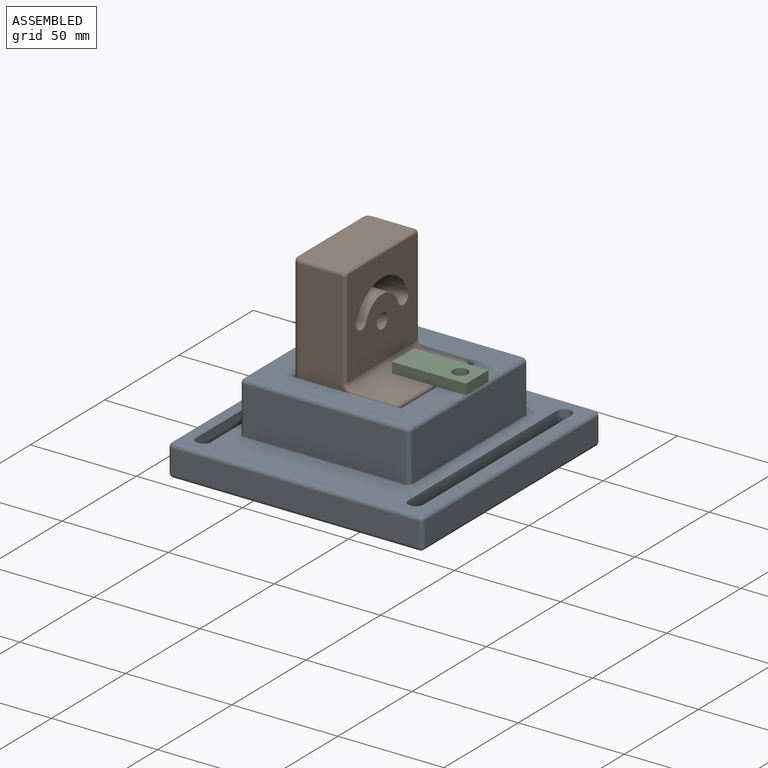
[diagram: assembled view]
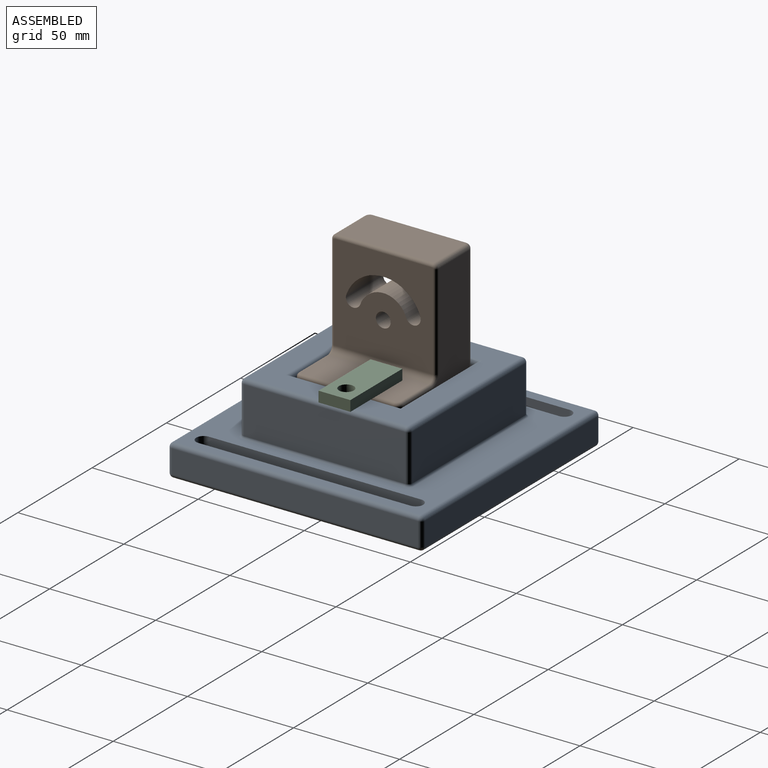
[diagram: assembled view, second angle]
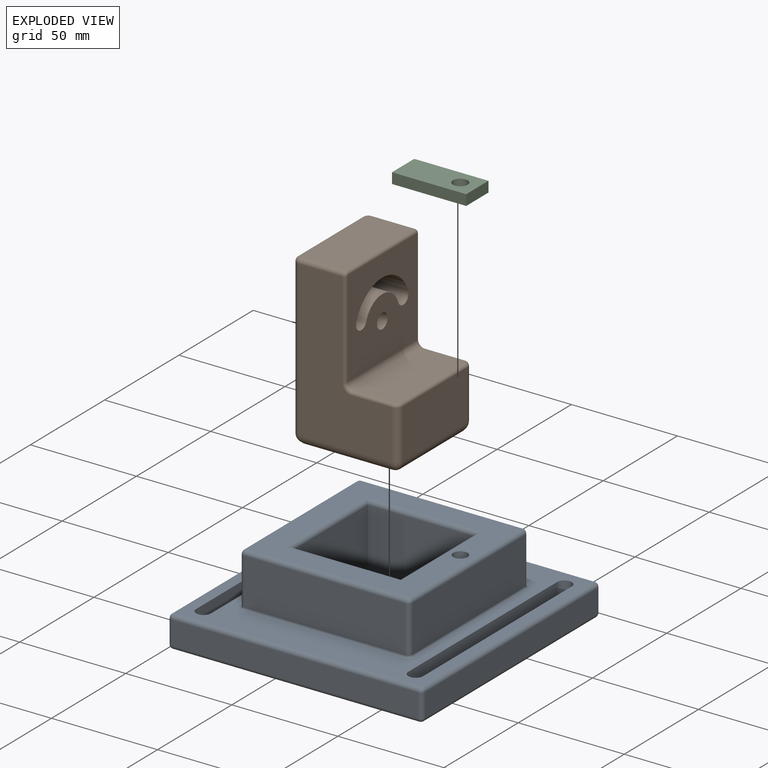
[diagram: exploded view]
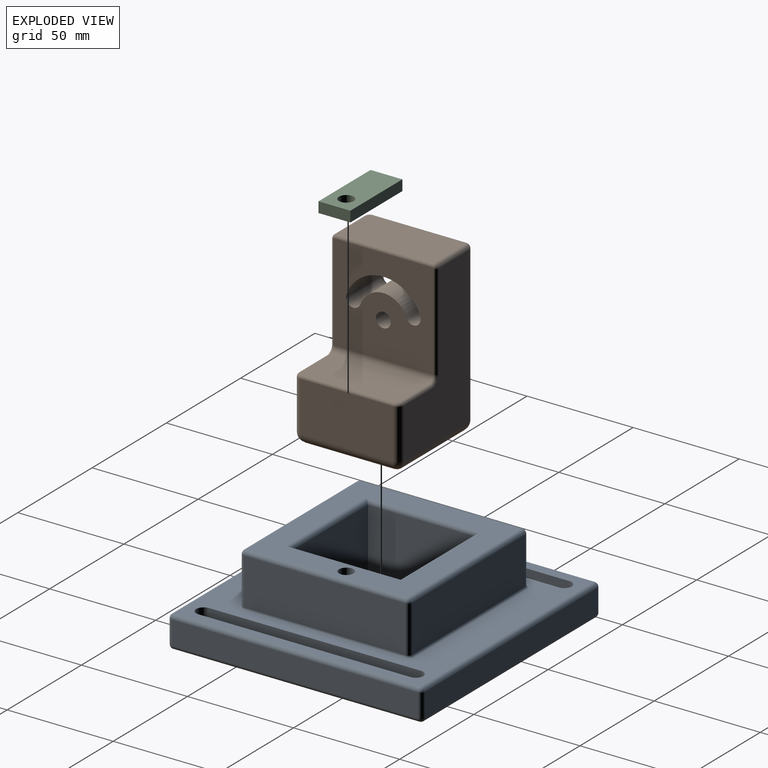
[diagram: exploded view, second angle]
ASSEMBLY  parts=3 mates=5
PART A: 76 faces, bbox 120x120x40 mm
  f0: cylinder r=3.4mm len=32mm, axis (0,0,1), area 683.6mm2, adj f3,f31
  f1: plane 116x116mm, normal (0,0,1), area 5262.8mm2, adj f17,f18,f19,f20,f21,f22,f23,f24
  f2: plane 116x116mm, normal (0,0,-1), area 11895.9mm2, adj f17,f18,f19,f20,f21,f22,f23,f24
  f3: plane 76x76mm, normal (0,0,1), area 2736.6mm2, adj f0,f64,f67,f68,f71,f72,f73,f74
  f4: plane 116x11mm, normal (0,-1,0), area 1276mm2, adj f40,f45,f48,f51
  f5: plane 116x11mm, normal (1,0,0), area 1276mm2, adj f37,f46,f47,f51
  f6: plane 116x11mm, normal (0,1,0), area 1276mm2, adj f32,f36,f37,f38
  f7: plane 116x11mm, normal (-1,0,0), area 1276mm2, adj f32,f35,f39,f40
  f8: plane 76x22mm, normal (0,-1,0), area 1672mm2, adj f52,f55,f59,f67
  f9: plane 76x22mm, normal (1,0,0), area 1672mm2, adj f52,f53,f56,f64
  f10: plane 76x22mm, normal (0,1,0), area 1672mm2, adj f53,f54,f60,f68
  f11: plane 76x22mm, normal (-1,0,0), area 1672mm2, adj f54,f55,f63,f71
  f12: plane 50.8x28mm, normal (0,1,0), area 1422.4mm2, adj f13,f15,f16,f72
  f13: plane 50.8x28mm, normal (-1,0,0), area 1422.4mm2, adj f12,f14,f16,f73
  f14: plane 50.8x28mm, normal (0,-1,0), area 1422.4mm2, adj f13,f15,f16,f75
  f15: plane 50.8x28mm, normal (1,0,0), area 1422.4mm2, adj f12,f14,f16,f74
  f16: plane 50.8x50.8mm, normal (0,0,1), area 2580.6mm2, adj f12,f13,f14,f15
  f17: plane 100x15mm, normal (1,0,0), area 1500mm2, adj f1,f2,f18,f20
  f18: cylinder r=3.5mm len=15mm, axis (0,0,1), area 164.9mm2, adj f1,f2,f17,f19
  f19: plane 100x15mm, normal (-1,0,0), area 1500mm2, adj f1,f2,f18,f20
  f20: cylinder r=3.5mm len=15mm, axis (0,0,1), area 164.9mm2, adj f1,f2,f17,f19
  f21: plane 100x15mm, normal (-1,0,0), area 1500mm2, adj f1,f2,f22,f24
  f22: cylinder r=3.5mm len=15mm, axis (0,0,1), area 164.9mm2, adj f1,f2,f21,f23
  f23: plane 100x15mm, normal (1,0,0), area 1500mm2, adj f1,f2,f22,f24
  f24: cylinder r=3.5mm len=15mm, axis (0,0,1), area 164.9mm2, adj f1,f2,f21,f23
  f25: plane 8x4.9mm, normal (-0.5,0.87,0), area 45.3mm2, adj f2,f26,f30,f31
  f26: plane 8x4.9mm, normal (0.5,0.87,0), area 45.3mm2, adj f2,f25,f27,f31
  f27: plane 8x5.66mm, normal (1,0,0), area 45.3mm2, adj f2,f26,f28,f31
  f28: plane 8x4.9mm, normal (0.5,-0.87,0), area 45.3mm2, adj f2,f27,f29,f31
  f29: plane 8x4.9mm, normal (-0.5,-0.87,0), area 45.3mm2, adj f2,f28,f30,f31
  f30: plane 8x5.66mm, normal (-1,0,0), area 45.3mm2, adj f2,f25,f29,f31
  f31: plane 11.32x9.8mm, normal (0,0,-1), area 46.9mm2, adj f0,f25,f26,f27,f28,f29,f30
  f32: cylinder r=2mm len=11mm, axis (0,0,1), area 34.6mm2, adj f6,f7,f33,f34
  f33: sphere r=2mm, area 6.3mm2, adj f32,f35,f36
  f34: sphere r=2mm, area 6.3mm2, adj f32,f38,f39
  f35: cylinder r=2mm len=116mm, axis (0,1,0), area 364.4mm2, adj f1,f7,f33,f41
  f36: cylinder r=2mm len=116mm, axis (1,0,0), area 364.4mm2, adj f1,f6,f33,f42
  f37: cylinder r=2mm len=11mm, axis (0,0,-1), area 34.6mm2, adj f5,f6,f42,f43
  f38: cylinder r=2mm len=116mm, axis (-1,0,0), area 364.4mm2, adj f2,f6,f34,f43
  f39: cylinder r=2mm len=116mm, axis (0,-1,0), area 364.4mm2, adj f2,f7,f34,f44
  f40: cylinder r=2mm len=11mm, axis (0,0,-1), area 34.6mm2, adj f4,f7,f41,f44
  f41: sphere r=2mm, area 6.3mm2, adj f35,f40,f45
  f42: sphere r=2mm, area 6.3mm2, adj f36,f37,f46
  f43: sphere r=2mm, area 6.3mm2, adj f37,f38,f47
  f44: sphere r=2mm, area 6.3mm2, adj f39,f40,f48
  f45: cylinder r=2mm len=116mm, axis (-1,0,0), area 364.4mm2, adj f1,f4,f41,f49
  f46: cylinder r=2mm len=116mm, axis (0,-1,0), area 364.4mm2, adj f1,f5,f42,f49
  f47: cylinder r=2mm len=116mm, axis (0,1,0), area 364.4mm2, adj f2,f5,f43,f50
  f48: cylinder r=2mm len=116mm, axis (1,0,0), area 364.4mm2, adj f2,f4,f44,f50
  f49: sphere r=2mm, area 6.3mm2, adj f45,f46,f51
  f50: sphere r=2mm, area 6.3mm2, adj f47,f48,f51
  f51: cylinder r=2mm len=11mm, axis (0,0,1), area 34.6mm2, adj f4,f5,f49,f50
  f52: cylinder r=2mm len=22mm, axis (0,0,1), area 69.1mm2, adj f8,f9,f57,f65
  f53: cylinder r=2mm len=22mm, axis (0,0,-1), area 69.1mm2, adj f9,f10,f58,f66
  f54: cylinder r=2mm len=22mm, axis (0,0,1), area 69.1mm2, adj f10,f11,f62,f70
  f55: cylinder r=2mm len=22mm, axis (0,0,-1), area 69.1mm2, adj f8,f11,f61,f69
  f56: cylinder r=1mm len=76mm, axis (0,1,0), area 119.4mm2, adj f1,f9,f57,f58
  f57: torus R=3mm, axis (0,0,1), area 5.8mm2, adj f1,f52,f56,f59
  f58: torus R=3mm, axis (0,0,1), area 5.8mm2, adj f1,f53,f56,f60
  f59: cylinder r=1mm len=76mm, axis (1,0,0), area 119.4mm2, adj f1,f8,f57,f61
  f60: cylinder r=1mm len=76mm, axis (-1,0,0), area 119.4mm2, adj f1,f10,f58,f62
  f61: torus R=3mm, axis (0,0,1), area 5.8mm2, adj f1,f55,f59,f63
  f62: torus R=3mm, axis (0,0,1), area 5.8mm2, adj f1,f54,f60,f63
  f63: cylinder r=1mm len=76mm, axis (0,-1,0), area 119.4mm2, adj f1,f11,f61,f62
  f64: cylinder r=2mm len=76mm, axis (0,-1,0), area 238.8mm2, adj f3,f9,f65,f66
  f65: sphere r=2mm, area 6.3mm2, adj f52,f64,f67
  f66: sphere r=2mm, area 6.3mm2, adj f53,f64,f68
  f67: cylinder r=2mm len=76mm, axis (-1,0,0), area 238.8mm2, adj f3,f8,f65,f69
  f68: cylinder r=2mm len=76mm, axis (1,0,0), area 238.8mm2, adj f3,f10,f66,f70
  f69: sphere r=2mm, area 6.3mm2, adj f55,f67,f71
  f70: sphere r=2mm, area 6.3mm2, adj f54,f68,f71
  f71: cylinder r=2mm len=76mm, axis (0,1,0), area 238.8mm2, adj f3,f11,f69,f70
  f72: cylinder r=2mm len=54.8mm, axis (-1,0,0), area 164.2mm2, adj f3,f12,f73,f74
  f73: cylinder r=2mm len=54.8mm, axis (0,-1,0), area 164.2mm2, adj f3,f13,f72,f75
  f74: cylinder r=2mm len=54.8mm, axis (0,1,0), area 164.2mm2, adj f3,f15,f72,f75
  f75: cylinder r=2mm len=54.8mm, axis (1,0,0), area 164.2mm2, adj f3,f14,f73,f74
PART B: 43 faces, bbox 50x50.3x80 mm
  f0: plane 73x43.8mm, normal (1,0,0), area 2861.9mm2, adj f8,f9,f10,f11,f12,f13,f14,f20
  f1: plane 73x43.8mm, normal (0,-1,0), area 2048.4mm2, adj f13,f16,f17,f29,f34,f36,f38
  f2: plane 73x43.8mm, normal (0,1,0), area 2048.4mm2, adj f14,f15,f24,f25,f35,f37,f39
  f3: plane 43.8x23.5mm, normal (-1,0,0), area 1029.3mm2, adj f15,f16,f21,f42
  f4: plane 46.8x20.3mm, normal (0,0,1), area 949.1mm2, adj f30,f38,f39,f40,f41,f42
  f5: plane 39.8x39.8mm, normal (0,0,-1), area 1584mm2, adj f17,f20,f21,f24
  f6: plane 46.8x45.5mm, normal (-1,0,0), area 1793.8mm2, adj f8,f9,f10,f11,f12,f30,f31,f32
  f7: plane 45.8x21.5mm, normal (0,0,1), area 984.3mm2, adj f25,f26,f27,f28,f29,f31
  f8: cylinder r=3.5mm len=25mm, axis (-1,0,0), area 549.8mm2, adj f0,f6
  f9: cylinder r=3.5mm len=25mm, axis (-1,0,0), area 274.9mm2, adj f0,f6,f11,f12
  f10: cylinder r=3.5mm len=25mm, axis (-1,0,0), area 274.9mm2, adj f0,f6,f11,f12
  f11: cylinder r=11.5mm len=25mm, axis (-1,0,0), area 707.8mm2, adj f0,f6,f9,f10
  f12: cylinder r=18.5mm len=34.88mm, axis (-1,0,0), area 1138.6mm2, adj f0,f6,f9,f10
  f13: cylinder r=3mm len=73mm, axis (0,0,1), area 344mm2, adj f0,f1,f18,f28
  f14: cylinder r=3mm len=73mm, axis (0,0,-1), area 344mm2, adj f0,f2,f22,f26
  f15: cylinder r=3mm len=23.5mm, axis (0,0,1), area 110.7mm2, adj f2,f3,f23,f41
  f16: cylinder r=3mm len=23.5mm, axis (0,0,-1), area 110.7mm2, adj f1,f3,f19,f40
  f17: cylinder r=5mm len=43.8mm, axis (1,0,0), area 332.6mm2, adj f1,f5,f18,f19
  f18: bspline ~6.03x5mm, area 24.5mm2, adj f13,f17,f20
  f19: bspline ~6.03x5mm, area 24.5mm2, adj f16,f17,f21
  f20: cylinder r=5mm len=43.8mm, axis (0,1,0), area 332.6mm2, adj f0,f5,f18,f22
  f21: cylinder r=5mm len=43.8mm, axis (0,-1,0), area 332.6mm2, adj f3,f5,f19,f23
  f22: bspline ~6.03x5mm, area 24.5mm2, adj f14,f20,f24
  f23: bspline ~6.03x5mm, area 24.5mm2, adj f15,f21,f24
  f24: cylinder r=5mm len=43.8mm, axis (-1,0,0), area 332.6mm2, adj f2,f5,f22,f23
  f25: cylinder r=2mm len=20.5mm, axis (1,0,0), area 64.4mm2, adj f2,f7,f26,f33
  f26: torus R=1mm, axis (0,0,1), area 11.2mm2, adj f7,f14,f25,f27
  f27: cylinder r=2mm len=43.8mm, axis (0,-1,0), area 137.6mm2, adj f0,f7,f26,f28
  f28: torus R=1mm, axis (0,0,1), area 11.2mm2, adj f7,f13,f27,f29
  f29: cylinder r=2mm len=20.5mm, axis (-1,0,0), area 64.4mm2, adj f1,f7,f28,f32
  f30: cylinder r=3mm len=46.8mm, axis (0,-1,0), area 220.5mm2, adj f4,f6,f36,f37
  f31: cylinder r=1.5mm len=45.8mm, axis (0,1,0), area 107.9mm2, adj f6,f7,f32,f33
  f32: torus R=0.5mm, axis (1,0,0), area 5.4mm2, adj f6,f29,f31,f34
  f33: torus R=0.5mm, axis (1,0,0), area 5.4mm2, adj f6,f25,f31,f35
  f34: cylinder r=1.5mm len=45mm, axis (0,0,1), area 106mm2, adj f1,f6,f32,f36
  f35: cylinder r=1.5mm len=45mm, axis (0,0,-1), area 106mm2, adj f2,f6,f33,f37
  f36: torus R=4.5mm, axis (0,-1,0), area 13.1mm2, adj f1,f30,f34,f38
  f37: torus R=4.5mm, axis (0,-1,0), area 13.1mm2, adj f2,f30,f35,f39
  f38: cylinder r=1.5mm len=18.8mm, axis (-1,0,0), area 44.3mm2, adj f1,f4,f36,f40
  f39: cylinder r=1.5mm len=18.8mm, axis (1,0,0), area 44.3mm2, adj f2,f4,f37,f41
  f40: torus R=1.5mm, axis (0,0,1), area 9.1mm2, adj f4,f16,f38,f42
  f41: torus R=1.5mm, axis (0,0,1), area 9.1mm2, adj f4,f15,f39,f42
  f42: cylinder r=1.5mm len=43.8mm, axis (0,1,0), area 103.2mm2, adj f3,f4,f40,f41
PART C: 7 faces, bbox 15x5x35 mm
  f0: plane 35x15mm, normal (0,-1,0), area 486.5mm2, adj f1,f3,f4,f5,f6
  f1: plane 35x5mm, normal (1,0,0), area 175mm2, adj f0,f2,f4,f5
  f2: plane 35x15mm, normal (0,1,0), area 486.5mm2, adj f1,f3,f4,f5,f6
  f3: plane 35x5mm, normal (-1,0,0), area 175mm2, adj f0,f2,f4,f5
  f4: plane 15x5mm, normal (0,0,1), area 75mm2, adj f0,f1,f2,f3
  f5: plane 15x5mm, normal (0,0,-1), area 75mm2, adj f0,f1,f2,f3
  f6: cylinder r=3.5mm len=7mm, axis (0,1,0), area 110mm2, adj f0,f2
PLACE A t=(-35.99,-17.55,-15.15)mm fixed
PLACE B rot(axis=(0,0,1),180deg) t=(-36.49,-18.05,-5.15)mm
PLACE C rot(axis=(0.58,-0.58,-0.58),120deg) t=(4.51,-12.55,27.35)mm
MATE planar A.f3 <-> C.f0  axis (0,0,1) through (-36.42,-17.61,24.85)mm
MATE planar A.f16 <-> B.f5  axis (0,0,1) through (-35.99,-17.55,-5.15)mm
MATE slider C.f6 <-> A.f0  axis (0,0,1) through (-3.49,-12.55,27.35)mm
MATE planar B.f2 <-> A.f12  axis (0,-1,0) through (-42.26,-42.95,29.71)mm
MATE planar A.f15 <-> B.f0  axis (1,0,0) through (-61.39,-17.55,8.85)mm
